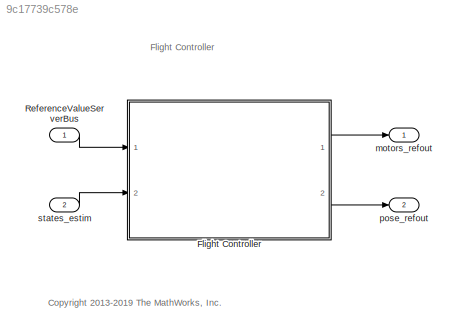
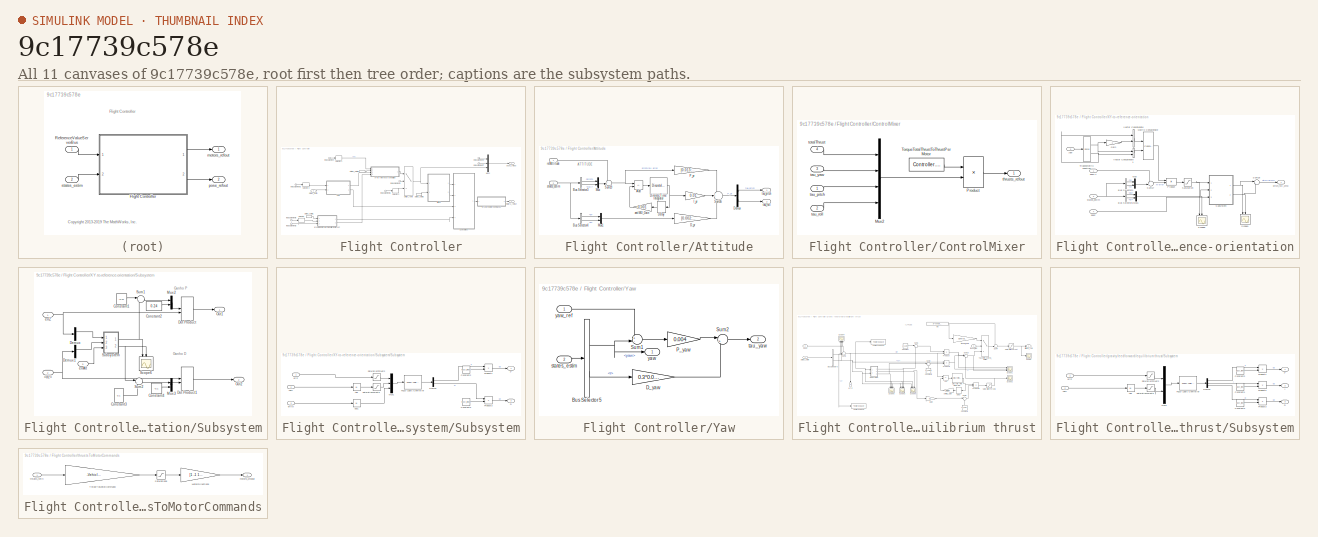
[diagram: thumbnail index - all 11 canvases of the model, root first then tree order]
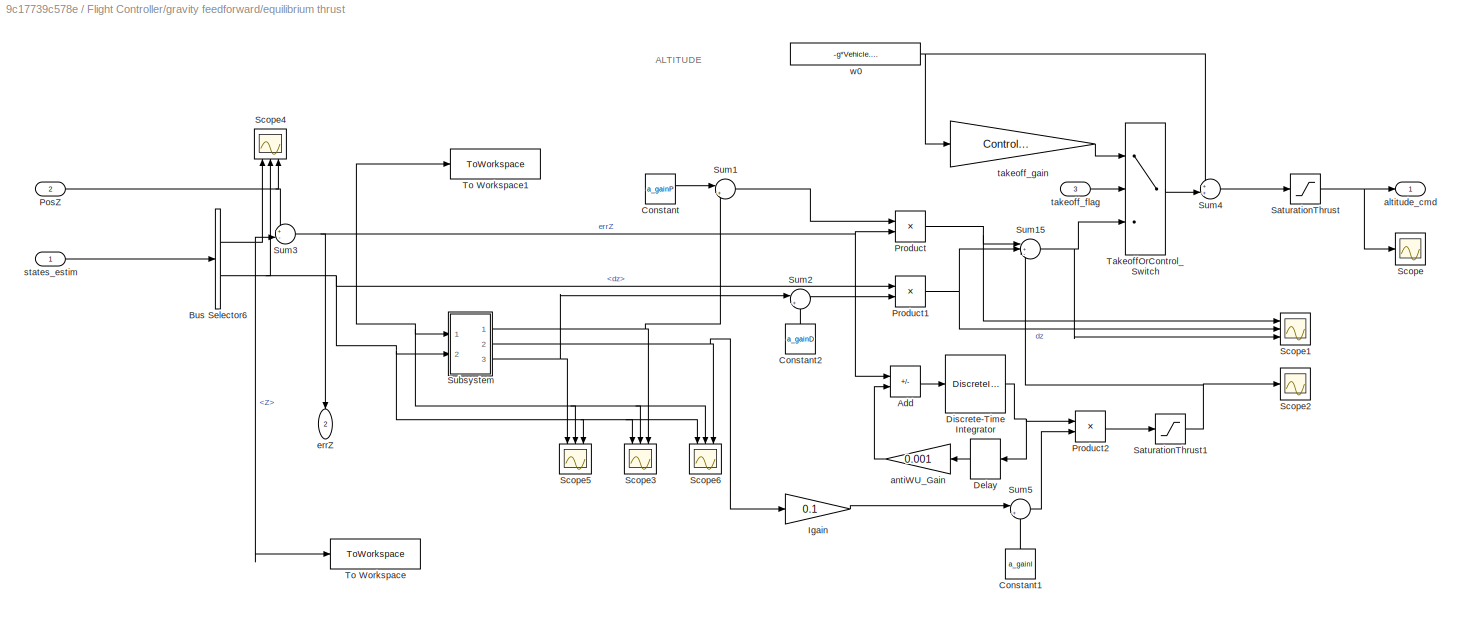
MODEL slx_9c17739c578e
KIND model
CONFIG AbsTol = auto
CONFIG EnableMultiTasking = on
CONFIG FixedStep = Ts
CONFIG MaxStep = auto
CONFIG MinStep = auto
CONFIG RelTol = 1e-3
CONFIG SampleTimeConstraint = Unconstrained
CONFIG SolverName = ode3
CONFIG StartTime = 0
CONFIG StopTime = TFinal
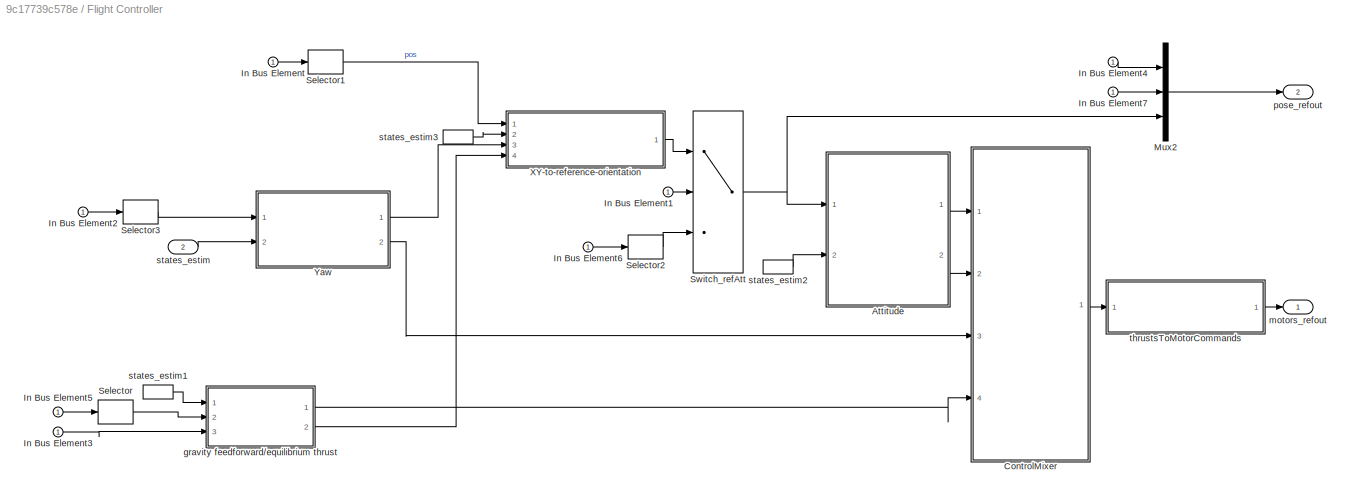
BLOCK [SubSystem] Flight Controller
  Ports = [2, 2]
  RequestExecContextInheritance = off
BLOCK [SubSystem] Flight Controller/Attitude
  Ports = [2, 2]
  RequestExecContextInheritance = off
BLOCK [Sum] Flight Controller/Attitude/Add
  IconShape = rectangular
  Inputs = +-
  Ports = [2, 1]
BLOCK [BusSelector] Flight Controller/Attitude/Bus Selector3
  OutputSignals = pitch,roll
  Ports = [1, 2]
BLOCK [BusSelector] Flight Controller/Attitude/Bus Selector4
  OutputSignals = q,p
  Ports = [1, 2]
BLOCK [Gain] Flight Controller/Attitude/D_pr
  Gain = [0.002;0.0028]
BLOCK [Delay] Flight Controller/Attitude/Delay
  DelayLength = 1
  InitialCondition = 0
  InputPortMap = u0
  Ports = [1, 1]
BLOCK [Demux] Flight Controller/Attitude/Demux
  Outputs = 2
  Ports = [1, 2]
BLOCK [DiscreteIntegrator] Flight Controller/Attitude/Discrete-Time Integrator
  ICPrevOutput = DiscIntNeverNeededParam
  ICPrevScaledInput = DiscIntNeverNeededParam
  InitialConditionSetting = Auto
  LimitOutput = on
  LowerSaturationLimit = -2
  Ports = [1, 1]
  SampleTime = Ts
  UpperSaturationLimit = 2
BLOCK [Gain] Flight Controller/Attitude/I_pr
  Gain = 0.01
BLOCK [Mux] Flight Controller/Attitude/Mux
  DisplayOption = bar
  Inputs = 2
  Ports = [2, 1]
BLOCK [Mux] Flight Controller/Attitude/Mux1
  DisplayOption = bar
  Inputs = 2
  Ports = [2, 1]
BLOCK [Gain] Flight Controller/Attitude/P_pr
  Gain = [0.013;0.01]
BLOCK [Sum] Flight Controller/Attitude/Sum16
  AccumDataTypeStr = single
  Inputs = ++-
  OutDataTypeStr = single
  Ports = [3, 1]
  SaturateOnIntegerOverflow = on
BLOCK [Sum] Flight Controller/Attitude/Sum19
  Inputs = +-|
  Ports = [2, 1]
BLOCK [Gain] Flight Controller/Attitude/antiWU_Gain
  Gain = 0.001
BLOCK [Inport] Flight Controller/Attitude/refAttitude
BLOCK [Inport] Flight Controller/Attitude/states_estim
  Port = 2
BLOCK [Outport] Flight Controller/Attitude/tau_pitch
  VectorParamsAs1DForOutWhenUnconnected = off
BLOCK [Outport] Flight Controller/Attitude/tau_roll
  Port = 2
  VectorParamsAs1DForOutWhenUnconnected = off
BLOCK [SubSystem] Flight Controller/ControlMixer
  Ports = [4, 1]
  RequestExecContextInheritance = off
BLOCK [Mux] Flight Controller/ControlMixer/Mux2
  DisplayOption = bar
  Ports = [4, 1]
BLOCK [Product] Flight Controller/ControlMixer/Product
  Multiplication = Matrix(*)
  Ports = [2, 1]
  RndMeth = Zero
BLOCK [Constant] Flight Controller/ControlMixer/TorqueTotalThrustToThrustPerMotor
  NameLocation = top
  OutDataTypeStr = single
  Value = Controller.Q2Ts
BLOCK [Inport] Flight Controller/ControlMixer/tau_pitch
BLOCK [Inport] Flight Controller/ControlMixer/tau_roll
  Port = 2
BLOCK [Inport] Flight Controller/ControlMixer/tau_yaw
  Port = 3
BLOCK [Outport] Flight Controller/ControlMixer/thrusts_refout
  VectorParamsAs1DForOutWhenUnconnected = off
BLOCK [Inport] Flight Controller/ControlMixer/totalThrust
  Port = 4
BLOCK [Inport] Flight Controller/In Bus Element
BLOCK [Inport] Flight Controller/In Bus Element1
BLOCK [Inport] Flight Controller/In Bus Element2
BLOCK [Inport] Flight Controller/In Bus Element3
BLOCK [Inport] Flight Controller/In Bus Element4
BLOCK [Inport] Flight Controller/In Bus Element5
BLOCK [Inport] Flight Controller/In Bus Element6
BLOCK [Inport] Flight Controller/In Bus Element7
BLOCK [Mux] Flight Controller/Mux2
  DisplayOption = bar
  Inputs = 3
  Ports = [3, 1]
BLOCK [Selector] Flight Controller/Selector
  IndexOptions = Index vector (dialog)
  Indices = 3
  InputPortWidth = 3
  OutputSizes = 1
  Ports = [1, 1]
BLOCK [Selector] Flight Controller/Selector1
  IndexOptions = Index vector (dialog)
  Indices = [1 2]
  InputPortWidth = 3
  OutputSizes = 1
  Ports = [1, 1]
BLOCK [Selector] Flight Controller/Selector2
  IndexOptions = Index vector (dialog)
  Indices = [2 3]
  InputPortWidth = 3
  OutputSizes = 1
  Ports = [1, 1]
BLOCK [Selector] Flight Controller/Selector3
  IndexOptions = Index vector (dialog)
  Indices = 1
  InputPortWidth = 3
  OutputSizes = 1
  Ports = [1, 1]
BLOCK [Switch] Flight Controller/Switch_refAtt
  Criteria = u2 > Threshold
  InputSameDT = off
  SaturateOnIntegerOverflow = off
BLOCK [SubSystem] Flight Controller/XY-to-reference-orientation
  Ports = [4, 1]
  RequestExecContextInheritance = off
BLOCK [BusSelector] Flight Controller/XY-to-reference-orientation/Bus Selector1
  OutputSignals = X,Y
  Ports = [1, 2]
BLOCK [BusSelector] Flight Controller/XY-to-reference-orientation/Bus Selector2
  OutputSignals = dx,dy
  Ports = [1, 2]
BLOCK [Gain] Flight Controller/XY-to-reference-orientation/Gain
  Gain = -1
BLOCK [Concatenate] Flight Controller/XY-to-reference-orientation/Matrix Concatenate
  ConcatenateDimension = 2
  Mode = Multidimensional array
  Ports = [2, 1]
BLOCK [Mux] Flight Controller/XY-to-reference-orientation/Mux
  DisplayOption = bar
  Inputs = 2
  Ports = [2, 1]
BLOCK [Mux] Flight Controller/XY-to-reference-orientation/Mux1
  DisplayOption = bar
  Inputs = 2
  Ports = [2, 1]
BLOCK [Product] Flight Controller/XY-to-reference-orientation/Product
  Multiplication = Matrix(*)
  OutDataTypeStr = single
  Ports = [2, 1]
  RndMeth = Zero
BLOCK [Saturate] Flight Controller/XY-to-reference-orientation/Saturation
  LowerLimit = -3
  OutDataTypeStr = single
  UpperLimit = 3
BLOCK [Scope] Flight Controller/XY-to-reference-orientation/Scope1
  Floating = off
  NameLocation = left
  NumInputPorts = 3
  Ports = [3]
  ScopeSpecificationString = Simulink.scopes.TimeScopeBlockCfg('CurrentConfiguration', extmgr.ConfigurationSet(extmgr.Configuration('Core','General UI',true),extmgr.Configuration('Core','Source UI',true),extmgr.Configuration('Sources','WiredSimulink',true,'DataLoggingVariableName','ScopeData2'),extmgr.Configuration('Visuals','Time Domain',true,'SerializedDisplays',{struct('MinYLimReal','-1.84828','MaxYLimReal','1.16311','YLab...<+1454ch>
BLOCK [Scope] Flight Controller/XY-to-reference-orientation/Scope6
  Floating = off
  NameLocation = left
  NumInputPorts = 3
  Ports = [3]
  ScopeSpecificationString = Simulink.scopes.TimeScopeBlockCfg('CurrentConfiguration', extmgr.ConfigurationSet(extmgr.Configuration('Core','General UI',true),extmgr.Configuration('Core','Source UI',true),extmgr.Configuration('Sources','WiredSimulink',true,'DataLoggingVariableName','ScopeData1'),extmgr.Configuration('Visuals','Time Domain',true,'SerializedDisplays',{struct('MinYLimReal','-1.84828','MaxYLimReal','1.16311','YLab...<+1454ch>
BLOCK [SubSystem] Flight Controller/XY-to-reference-orientation/Subsystem
  Ports = [3, 2]
  RequestExecContextInheritance = off
BLOCK [Inport] Flight Controller/XY-to-reference-orientation/Subsystem/<dz>
  Port = 2
BLOCK [Constant] Flight Controller/XY-to-reference-orientation/Subsystem/Constant1
  OutDataTypeStr = single
  Value = -0.24
BLOCK [Constant] Flight Controller/XY-to-reference-orientation/Subsystem/Constant2
  OutDataTypeStr = single
  Value = 0.24
BLOCK [Constant] Flight Controller/XY-to-reference-orientation/Subsystem/Constant3
  OutDataTypeStr = single
  Value = 0.1
BLOCK [Constant] Flight Controller/XY-to-reference-orientation/Subsystem/Constant4
  OutDataTypeStr = single
  Value = -0.1
BLOCK [Demux] Flight Controller/XY-to-reference-orientation/Subsystem/Demux
  Outputs = 2
  Ports = [1, 2]
BLOCK [Demux] Flight Controller/XY-to-reference-orientation/Subsystem/Demux1
  Outputs = 2
  Ports = [1, 2]
BLOCK [DotProduct] Flight Controller/XY-to-reference-orientation/Subsystem/Dot Product
  InputSameDT = off
  OutDataTypeStr = single
BLOCK [DotProduct] Flight Controller/XY-to-reference-orientation/Subsystem/Dot Product1
  InputSameDT = off
  OutDataTypeStr = single
BLOCK [Mux] Flight Controller/XY-to-reference-orientation/Subsystem/Mux2
  DisplayOption = bar
  Inputs = 2
  Ports = [2, 1]
BLOCK [Mux] Flight Controller/XY-to-reference-orientation/Subsystem/Mux3
  DisplayOption = bar
  Inputs = 2
  Ports = [2, 1]
BLOCK [Outport] Flight Controller/XY-to-reference-orientation/Subsystem/Out1
BLOCK [Outport] Flight Controller/XY-to-reference-orientation/Subsystem/Out2
  Port = 2
BLOCK [Scope] Flight Controller/XY-to-reference-orientation/Subsystem/Scope6
  Floating = off
  NameLocation = left
  NumInputPorts = 3
  Ports = [3]
  ScopeSpecificationString = Simulink.scopes.TimeScopeBlockCfg('CurrentConfiguration', extmgr.ConfigurationSet(extmgr.Configuration('Core','General UI',true),extmgr.Configuration('Core','Source UI',true),extmgr.Configuration('Sources','WiredSimulink',true,'DataLoggingVariableName','ScopeData3'),extmgr.Configuration('Visuals','Time Domain',true,'SerializedDisplays',{struct('MinYLimReal','-0.22007','MaxYLimReal','0.36817','YLab...<+1477ch>
BLOCK [SubSystem] Flight Controller/XY-to-reference-orientation/Subsystem/Subsystem
  Ports = [3, 2]
  RequestExecContextInheritance = off
BLOCK [Inport] Flight Controller/XY-to-reference-orientation/Subsystem/Subsystem/<dz>
  Port = 2
BLOCK [Abs] Flight Controller/XY-to-reference-orientation/Subsystem/Subsystem/Abs
  SaturateOnIntegerOverflow = off
BLOCK [Abs] Flight Controller/XY-to-reference-orientation/Subsystem/Subsystem/Abs1
  SaturateOnIntegerOverflow = off
BLOCK [Constant] Flight Controller/XY-to-reference-orientation/Subsystem/Subsystem/Constant2
  Value = fuzzy_feed2
BLOCK [Constant] Flight Controller/XY-to-reference-orientation/Subsystem/Subsystem/Constant3
  Value = fuzzy_feed2
BLOCK [Outport] Flight Controller/XY-to-reference-orientation/Subsystem/Subsystem/D
  Port = 2
BLOCK [Demux] Flight Controller/XY-to-reference-orientation/Subsystem/Subsystem/Demux
  Outputs = 2
  Ports = [1, 2]
BLOCK [Reference] Flight Controller/XY-to-reference-orientation/Subsystem/Subsystem/Fuzzy Logic Controller  REF=fuzblock/Fuzzy Logic   (lib defined in mdl_858b3b3e7478)
Controller
  Ports = [1, 1]
  SourceBlock = fuzblock/Fuzzy Logic \nController
  SourceProductBaseCode = FL
  SourceType = Fuzzy Inference System
BLOCK [Mux] Flight Controller/XY-to-reference-orientation/Subsystem/Subsystem/Mux1
  DisplayOption = bar
  Inputs = 3
  Ports = [3, 1]
BLOCK [Outport] Flight Controller/XY-to-reference-orientation/Subsystem/Subsystem/P
BLOCK [Product] Flight Controller/XY-to-reference-orientation/Subsystem/Subsystem/Product1
  Ports = [2, 1]
BLOCK [Product] Flight Controller/XY-to-reference-orientation/Subsystem/Subsystem/Product3
  Ports = [2, 1]
BLOCK [Saturate] Flight Controller/XY-to-reference-orientation/Subsystem/Subsystem/SaturationThrust2
  LowerLimit = -2
  OutDataTypeStr = single
  UpperLimit = 2
BLOCK [Saturate] Flight Controller/XY-to-reference-orientation/Subsystem/Subsystem/SaturationThrust3
  LowerLimit = -2
  OutDataTypeStr = single
  UpperLimit = 2
BLOCK [Inport] Flight Controller/XY-to-reference-orientation/Subsystem/Subsystem/errAlt
  Port = 3
BLOCK [Inport] Flight Controller/XY-to-reference-orientation/Subsystem/Subsystem/errZ
BLOCK [Sum] Flight Controller/XY-to-reference-orientation/Subsystem/Sum1
  AccumDataTypeStr = single
  Inputs = |+-
  OutDataTypeStr = single
  Ports = [2, 1]
  SaturateOnIntegerOverflow = on
BLOCK [Sum] Flight Controller/XY-to-reference-orientation/Subsystem/Sum2
  AccumDataTypeStr = single
  Inputs = |++
  OutDataTypeStr = single
  Ports = [2, 1]
  SaturateOnIntegerOverflow = on
BLOCK [Inport] Flight Controller/XY-to-reference-orientation/Subsystem/errAlt
  Port = 3
BLOCK [Inport] Flight Controller/XY-to-reference-orientation/Subsystem/errZ
BLOCK [Sum] Flight Controller/XY-to-reference-orientation/Sum17
  AccumDataTypeStr = single
  Inputs = +-|
  Ports = [2, 1]
BLOCK [Sum] Flight Controller/XY-to-reference-orientation/Sum18
  AccumDataTypeStr = single
  Inputs = |++
  OutDataTypeStr = single
  Ports = [2, 1]
  SaturateOnIntegerOverflow = on
BLOCK [Trigonometry] Flight Controller/XY-to-reference-orientation/Trigonometric Function
  Operator = sincos
  Ports = [1, 2]
BLOCK [Concatenate] Flight Controller/XY-to-reference-orientation/Vector Concatenate
  Ports = [2, 1]
BLOCK [Concatenate] Flight Controller/XY-to-reference-orientation/Vector Concatenate1
  Ports = [2, 1]
BLOCK [Outport] Flight Controller/XY-to-reference-orientation/pitch_roll_cmd
  VectorParamsAs1DForOutWhenUnconnected = off
BLOCK [Inport] Flight Controller/XY-to-reference-orientation/posXY
BLOCK [Inport] Flight Controller/XY-to-reference-orientation/posZ
  Port = 4
BLOCK [Inport] Flight Controller/XY-to-reference-orientation/states_estim
  Port = 2
BLOCK [Inport] Flight Controller/XY-to-reference-orientation/yaw
  Port = 3
BLOCK [SubSystem] Flight Controller/Yaw
  Ports = [2, 2]
  RequestExecContextInheritance = off
BLOCK [BusSelector] Flight Controller/Yaw/Bus Selector5
  OutputSignals = yaw,r
  Ports = [1, 2]
BLOCK [Gain] Flight Controller/Yaw/D_yaw
  Gain = 0.3*0.004
BLOCK [Gain] Flight Controller/Yaw/P_yaw
  Gain = 0.004
  OutDataTypeStr = single
  ParamDataTypeStr = single
BLOCK [Sum] Flight Controller/Yaw/Sum1
  AccumDataTypeStr = single
  Inputs = +-|
  OutDataTypeStr = single
  Ports = [2, 1]
  SaturateOnIntegerOverflow = on
BLOCK [Sum] Flight Controller/Yaw/Sum2
  Inputs = |+-
  Ports = [2, 1]
BLOCK [Inport] Flight Controller/Yaw/states_estim
  Port = 2
BLOCK [Outport] Flight Controller/Yaw/tau_yaw
  Port = 2
  VectorParamsAs1DForOutWhenUnconnected = off
BLOCK [Outport] Flight Controller/Yaw/yaw
  VectorParamsAs1DForOutWhenUnconnected = off
BLOCK [Inport] Flight Controller/Yaw/yaw_ref
BLOCK [SubSystem] Flight Controller/gravity feedforward//equilibrium thrust
  Ports = [3, 2]
  RequestExecContextInheritance = off
BLOCK [Sum] Flight Controller/gravity feedforward//equilibrium thrust/Add
  IconShape = rectangular
  Inputs = +-
  Ports = [2, 1]
BLOCK [BusSelector] Flight Controller/gravity feedforward//equilibrium thrust/Bus Selector6
  OutputSignals = Z,dz
  Ports = [1, 2]
BLOCK [Constant] Flight Controller/gravity feedforward//equilibrium thrust/Constant
  Value = a_gainP
BLOCK [Constant] Flight Controller/gravity feedforward//equilibrium thrust/Constant1
  NameLocation = right
  Value = a_gainI
BLOCK [Constant] Flight Controller/gravity feedforward//equilibrium thrust/Constant2
  NameLocation = right
  Value = a_gainD
BLOCK [Delay] Flight Controller/gravity feedforward//equilibrium thrust/Delay
  DelayLength = 1
  InitialCondition = 0
  InputPortMap = u0
  Ports = [1, 1]
BLOCK [DiscreteIntegrator] Flight Controller/gravity feedforward//equilibrium thrust/Discrete-Time Integrator
  ICPrevOutput = DiscIntNeverNeededParam
  ICPrevScaledInput = DiscIntNeverNeededParam
  InitialConditionSetting = Auto
  LimitOutput = on
  LowerSaturationLimit = -1
  Ports = [1, 1]
  SampleTime = Ts
  UpperSaturationLimit = 1
BLOCK [Gain] Flight Controller/gravity feedforward//equilibrium thrust/Igain
  Gain = 0.1
  NameLocation = top
BLOCK [Inport] Flight Controller/gravity feedforward//equilibrium thrust/PosZ
  Port = 2
BLOCK [Product] Flight Controller/gravity feedforward//equilibrium thrust/Product
  Ports = [2, 1]
BLOCK [Product] Flight Controller/gravity feedforward//equilibrium thrust/Product1
  Ports = [2, 1]
BLOCK [Product] Flight Controller/gravity feedforward//equilibrium thrust/Product2
  Ports = [2, 1]
BLOCK [Saturate] Flight Controller/gravity feedforward//equilibrium thrust/SaturationThrust
  LowerLimit = -4*Controller.totalThrustMaxRelative*Controller.motorsThrustPerMotorMax
  OutDataTypeStr = single
  UpperLimit = 4*Controller.totalThrustMaxRelative*Controller.motorsThrustPerMotorMax
BLOCK [Saturate] Flight Controller/gravity feedforward//equilibrium thrust/SaturationThrust1
  LowerLimit = -0.2
  OutDataTypeStr = single
  UpperLimit = 0.2
BLOCK [Scope] Flight Controller/gravity feedforward//equilibrium thrust/Scope
  Floating = off
  NumInputPorts = 1
  Ports = [1]
  ScopeSpecificationString = Simulink.scopes.TimeScopeBlockCfg('CurrentConfiguration', extmgr.ConfigurationSet(extmgr.Configuration('Core','General UI',true),extmgr.Configuration('Core','Source UI',true),extmgr.Configuration('Sources','WiredSimulink',true),extmgr.Configuration('Visuals','Time Domain',true,'SerializedDisplays',{struct('MinYLimReal','-1.41005','MaxYLimReal','0.69515','YLabelReal','','MinYLimMag','0.00000','MaxY...<+1361ch>
BLOCK [Scope] Flight Controller/gravity feedforward//equilibrium thrust/Scope1
  Floating = off
  NumInputPorts = 3
  Ports = [3]
  ScopeSpecificationString = Simulink.scopes.TimeScopeBlockCfg('CurrentConfiguration', extmgr.ConfigurationSet(extmgr.Configuration('Core','General UI',true),extmgr.Configuration('Core','Source UI',true),extmgr.Configuration('Sources','WiredSimulink',true,'DataLoggingVariableName','ScopeData1'),extmgr.Configuration('Visuals','Time Domain',true,'SerializedDisplays',{struct('MinYLimReal','-0.81759','MaxYLimReal','0.63358','YLab...<+1449ch>
BLOCK [Scope] Flight Controller/gravity feedforward//equilibrium thrust/Scope2
  Floating = off
  NumInputPorts = 1
  Ports = [1]
  ScopeSpecificationString = Simulink.scopes.TimeScopeBlockCfg('CurrentConfiguration', extmgr.ConfigurationSet(extmgr.Configuration('Core','General UI',true),extmgr.Configuration('Core','Source UI',true),extmgr.Configuration('Sources','WiredSimulink',true,'DataLoggingVariableName','ScopeData2'),extmgr.Configuration('Visuals','Time Domain',true,'SerializedDisplays',{struct('MinYLimReal','-0.10046','MaxYLimReal','0.0124','YLabe...<+1429ch>
BLOCK [Scope] Flight Controller/gravity feedforward//equilibrium thrust/Scope3
  Floating = off
  NameLocation = left
  NumInputPorts = 3
  Ports = [3]
  ScopeSpecificationString = Simulink.scopes.TimeScopeBlockCfg('CurrentConfiguration', extmgr.ConfigurationSet(extmgr.Configuration('Core','General UI',true),extmgr.Configuration('Core','Source UI',true),extmgr.Configuration('Sources','WiredSimulink',true,'DataLoggingVariableName','ScopeData1'),extmgr.Configuration('Visuals','Time Domain',true,'SerializedDisplays',{struct('MinYLimReal','-1.15287','MaxYLimReal','1.18348','YLab...<+1479ch>
BLOCK [Scope] Flight Controller/gravity feedforward//equilibrium thrust/Scope4
  Floating = off
  NameLocation = right
  NumInputPorts = 3
  Ports = [3]
  ScopeSpecificationString = Simulink.scopes.TimeScopeBlockCfg('CurrentConfiguration', extmgr.ConfigurationSet(extmgr.Configuration('Core','General UI',true),extmgr.Configuration('Core','Source UI',true),extmgr.Configuration('Sources','WiredSimulink',true,'DataLoggingVariableName','ScopeData4'),extmgr.Configuration('Visuals','Time Domain',true,'SerializedDisplays',{struct('MinYLimReal','-4.41057','MaxYLimReal','0.44216','YLab...<+2776ch>
BLOCK [Scope] Flight Controller/gravity feedforward//equilibrium thrust/Scope5
  Floating = off
  NameLocation = left
  NumInputPorts = 3
  Ports = [3]
  ScopeSpecificationString = Simulink.scopes.TimeScopeBlockCfg('CurrentConfiguration', extmgr.ConfigurationSet(extmgr.Configuration('Core','General UI',true),extmgr.Configuration('Core','Source UI',true),extmgr.Configuration('Sources','WiredSimulink',true,'DataLoggingVariableName','ScopeData1'),extmgr.Configuration('Visuals','Time Domain',true,'SerializedDisplays',{struct('MinYLimReal','-4.23107','MaxYLimReal','1.63791','YLab...<+1454ch>
BLOCK [Scope] Flight Controller/gravity feedforward//equilibrium thrust/Scope6
  Floating = off
  NameLocation = left
  NumInputPorts = 3
  Ports = [3]
  ScopeSpecificationString = Simulink.scopes.TimeScopeBlockCfg('CurrentConfiguration', extmgr.ConfigurationSet(extmgr.Configuration('Core','General UI',true),extmgr.Configuration('Core','Source UI',true),extmgr.Configuration('Sources','WiredSimulink',true,'DataLoggingVariableName','ScopeData1'),extmgr.Configuration('Visuals','Time Domain',true,'SerializedDisplays',{struct('MinYLimReal','-1.84828','MaxYLimReal','1.16311','YLab...<+1454ch>
BLOCK [SubSystem] Flight Controller/gravity feedforward//equilibrium thrust/Subsystem
  Ports = [2, 3]
  RequestExecContextInheritance = off
BLOCK [Inport] Flight Controller/gravity feedforward//equilibrium thrust/Subsystem/<dz>
  Port = 2
BLOCK [Abs] Flight Controller/gravity feedforward//equilibrium thrust/Subsystem/Abs
  SaturateOnIntegerOverflow = off
BLOCK [Constant] Flight Controller/gravity feedforward//equilibrium thrust/Subsystem/Constant1
  Value = fuzzy_feed
BLOCK [Constant] Flight Controller/gravity feedforward//equilibrium thrust/Subsystem/Constant2
  Value = fuzzy_feed
BLOCK [Constant] Flight Controller/gravity feedforward//equilibrium thrust/Subsystem/Constant3
  Value = fuzzy_feed
BLOCK [Outport] Flight Controller/gravity feedforward//equilibrium thrust/Subsystem/D
  Port = 3
BLOCK [Demux] Flight Controller/gravity feedforward//equilibrium thrust/Subsystem/Demux
  Outputs = 3
  Ports = [1, 3]
BLOCK [Reference] Flight Controller/gravity feedforward//equilibrium thrust/Subsystem/Fuzzy Logic Controller  REF=fuzblock/Fuzzy Logic   (lib defined in mdl_858b3b3e7478)
Controller
  Ports = [1, 1]
  SourceBlock = fuzblock/Fuzzy Logic \nController
  SourceProductBaseCode = FL
  SourceType = Fuzzy Inference System
BLOCK [Outport] Flight Controller/gravity feedforward//equilibrium thrust/Subsystem/I
  Port = 2
BLOCK [Mux] Flight Controller/gravity feedforward//equilibrium thrust/Subsystem/Mux1
  DisplayOption = bar
  Inputs = 2
  Ports = [2, 1]
BLOCK [Outport] Flight Controller/gravity feedforward//equilibrium thrust/Subsystem/P
BLOCK [Product] Flight Controller/gravity feedforward//equilibrium thrust/Subsystem/Product1
  Ports = [2, 1]
BLOCK [Product] Flight Controller/gravity feedforward//equilibrium thrust/Subsystem/Product2
  Ports = [2, 1]
BLOCK [Product] Flight Controller/gravity feedforward//equilibrium thrust/Subsystem/Product3
  Ports = [2, 1]
BLOCK [Saturate] Flight Controller/gravity feedforward//equilibrium thrust/Subsystem/SaturationThrust2
  LowerLimit = -2
  OutDataTypeStr = single
  UpperLimit = 2
BLOCK [Saturate] Flight Controller/gravity feedforward//equilibrium thrust/Subsystem/SaturationThrust3
  LowerLimit = -2
  OutDataTypeStr = single
  UpperLimit = 2
BLOCK [Inport] Flight Controller/gravity feedforward//equilibrium thrust/Subsystem/errZ
BLOCK [Sum] Flight Controller/gravity feedforward//equilibrium thrust/Sum1
  AccumDataTypeStr = single
  Inputs = |++
  OutDataTypeStr = single
  Ports = [2, 1]
  SaturateOnIntegerOverflow = on
BLOCK [Sum] Flight Controller/gravity feedforward//equilibrium thrust/Sum15
  AccumDataTypeStr = single
  Inputs = |+-+
  OutDataTypeStr = single
  Ports = [3, 1]
  SaturateOnIntegerOverflow = on
BLOCK [Sum] Flight Controller/gravity feedforward//equilibrium thrust/Sum2
  AccumDataTypeStr = single
  Inputs = |++
  OutDataTypeStr = single
  Ports = [2, 1]
  SaturateOnIntegerOverflow = on
BLOCK [Sum] Flight Controller/gravity feedforward//equilibrium thrust/Sum3
  AccumDataTypeStr = single
  Inputs = +-|
  OutDataTypeStr = single
  Ports = [2, 1]
  SaturateOnIntegerOverflow = on
BLOCK [Sum] Flight Controller/gravity feedforward//equilibrium thrust/Sum4
  AccumDataTypeStr = single
  Inputs = ++|
  OutDataTypeStr = single
  Ports = [2, 1]
  SaturateOnIntegerOverflow = on
BLOCK [Sum] Flight Controller/gravity feedforward//equilibrium thrust/Sum5
  AccumDataTypeStr = single
  Inputs = |++
  OutDataTypeStr = single
  Ports = [2, 1]
  SaturateOnIntegerOverflow = on
BLOCK [Switch] Flight Controller/gravity feedforward//equilibrium thrust/TakeoffOrControl_Switch
  Criteria = u2 > Threshold
  InputSameDT = off
  SaturateOnIntegerOverflow = off
BLOCK [ToWorkspace] Flight Controller/gravity feedforward//equilibrium thrust/To Workspace
  FixptAsFi = on
  MaxDataPoints = inf
  Ports = [1]
  SampleTime = -1
  VariableName = refAltDrone
BLOCK [ToWorkspace] Flight Controller/gravity feedforward//equilibrium thrust/To Workspace1
  FixptAsFi = on
  MaxDataPoints = inf
  Ports = [1]
  SampleTime = -1
  VariableName = AltError
BLOCK [Outport] Flight Controller/gravity feedforward//equilibrium thrust/altitude_cmd
  VectorParamsAs1DForOutWhenUnconnected = off
BLOCK [Gain] Flight Controller/gravity feedforward//equilibrium thrust/antiWU_Gain
  Gain = 0.001
BLOCK [Outport] Flight Controller/gravity feedforward//equilibrium thrust/errZ
  NameLocation = left
  Port = 2
  VectorParamsAs1DForOutWhenUnconnected = off
BLOCK [Inport] Flight Controller/gravity feedforward//equilibrium thrust/states_estim
BLOCK [Inport] Flight Controller/gravity feedforward//equilibrium thrust/takeoff_flag
  Port = 3
BLOCK [Gain] Flight Controller/gravity feedforward//equilibrium thrust/takeoff_gain
  Gain = Controller.takeoffGain
  OutDataTypeStr = single
  ParamDataTypeStr = single
  SaturateOnIntegerOverflow = on
BLOCK [Constant] Flight Controller/gravity feedforward//equilibrium thrust/w0
  OutDataTypeStr = single
  SampleTime = Ts
  Value = -g*Vehicle.Airframe.mass
BLOCK [Outport] Flight Controller/motors_refout
  VectorParamsAs1DForOutWhenUnconnected = off
BLOCK [Outport] Flight Controller/pose_refout
  Port = 2
  VectorParamsAs1DForOutWhenUnconnected = off
BLOCK [Inport] Flight Controller/states_estim
  Port = 2
BLOCK [InportShadow] Flight Controller/states_estim1
  Port = 2
BLOCK [InportShadow] Flight Controller/states_estim2
  Port = 2
BLOCK [InportShadow] Flight Controller/states_estim3
  Port = 2
BLOCK [SubSystem] Flight Controller/thrustsToMotorCommands
  Ports = [1, 1]
  RequestExecContextInheritance = off
BLOCK [Gain] Flight Controller/thrustsToMotorCommands/MotorDirections
  Gain = [1 -1 1 -1]
BLOCK [Saturate] Flight Controller/thrustsToMotorCommands/Saturation5
  LowerLimit = Vehicle.Motor.minLimit
  UpperLimit = Vehicle.Motor.maxLimit
BLOCK [Gain] Flight Controller/thrustsToMotorCommands/ThrustToMotorCommand
  Gain = -Vehicle.Motor.thrustToMotorCommand
BLOCK [Outport] Flight Controller/thrustsToMotorCommands/motors_cmdout
  VectorParamsAs1DForOutWhenUnconnected = off
BLOCK [Inport] Flight Controller/thrustsToMotorCommands/thrusts_refin
BLOCK [Inport] ReferenceValueServerBus
  BusOutputAsStruct = on
  OutDataTypeStr = Bus: CommandBus
BLOCK [Outport] motors_refout
  VectorParamsAs1DForOutWhenUnconnected = off
BLOCK [Outport] pose_refout
  Port = 2
  VectorParamsAs1DForOutWhenUnconnected = off
BLOCK [Inport] states_estim
  BusOutputAsStruct = on
  OutDataTypeStr = Bus: statesEstim_t
  Port = 2
ANNOTATION (root): <copyright redacted>
ANNOTATION (root): Flight Controller
ANNOTATION Flight Controller/Attitude: ATTITUDE
ANNOTATION Flight Controller/XY-to-reference-orientation/Subsystem: Ganho D
ANNOTATION Flight Controller/XY-to-reference-orientation/Subsystem: Ganho P
ANNOTATION Flight Controller/gravity feedforward//equilibrium thrust: ALTITUDE
LINE Flight Controller/Attitude/Add:1 -> Flight Controller/Attitude/Discrete-Time Integrator:1
LINE Flight Controller/Attitude/Bus Selector3:1 -> Flight Controller/Attitude/Mux:1
LINE Flight Controller/Attitude/Bus Selector3:2 -> Flight Controller/Attitude/Mux:2
LINE Flight Controller/Attitude/Bus Selector4:1 -> Flight Controller/Attitude/Mux1:1
LINE Flight Controller/Attitude/Bus Selector4:2 -> Flight Controller/Attitude/Mux1:2
LINE Flight Controller/Attitude/D_pr:1 -> Flight Controller/Attitude/Sum16:3
LINE Flight Controller/Attitude/Delay:1 -> Flight Controller/Attitude/antiWU_Gain:1
LINE Flight Controller/Attitude/Demux:1 -> Flight Controller/Attitude/tau_pitch:1
LINE Flight Controller/Attitude/Demux:2 -> Flight Controller/Attitude/tau_roll:1
NET Flight Controller/Attitude/Discrete-Time Integrator:1 -> Flight Controller/Attitude/Delay:1, Flight Controller/Attitude/I_pr:1
LINE Flight Controller/Attitude/I_pr:1 -> Flight Controller/Attitude/Sum16:2
LINE Flight Controller/Attitude/Mux1:1 -> Flight Controller/Attitude/D_pr:1
LINE Flight Controller/Attitude/Mux:1 -> Flight Controller/Attitude/Sum19:2
LINE Flight Controller/Attitude/P_pr:1 -> Flight Controller/Attitude/Sum16:1
LINE Flight Controller/Attitude/Sum16:1 -> Flight Controller/Attitude/Demux:1
NET Flight Controller/Attitude/Sum19:1 -> Flight Controller/Attitude/Add:1, Flight Controller/Attitude/P_pr:1
LINE Flight Controller/Attitude/antiWU_Gain:1 -> Flight Controller/Attitude/Add:2
LINE Flight Controller/Attitude/refAttitude:1 -> Flight Controller/Attitude/Sum19:1
NET Flight Controller/Attitude/states_estim:1 -> Flight Controller/Attitude/Bus Selector3:1, Flight Controller/Attitude/Bus Selector4:1
LINE Flight Controller/Attitude:1 -> Flight Controller/ControlMixer:1
LINE Flight Controller/Attitude:2 -> Flight Controller/ControlMixer:2
LINE Flight Controller/ControlMixer/Mux2:1 -> Flight Controller/ControlMixer/Product:2
LINE Flight Controller/ControlMixer/Product:1 -> Flight Controller/ControlMixer/thrusts_refout:1
LINE Flight Controller/ControlMixer/TorqueTotalThrustToThrustPerMotor:1 -> Flight Controller/ControlMixer/Product:1
LINE Flight Controller/ControlMixer/tau_pitch:1 -> Flight Controller/ControlMixer/Mux2:3
LINE Flight Controller/ControlMixer/tau_roll:1 -> Flight Controller/ControlMixer/Mux2:4
LINE Flight Controller/ControlMixer/tau_yaw:1 -> Flight Controller/ControlMixer/Mux2:2
LINE Flight Controller/ControlMixer/totalThrust:1 -> Flight Controller/ControlMixer/Mux2:1
LINE Flight Controller/ControlMixer:1 -> Flight Controller/thrustsToMotorCommands:1
LINE Flight Controller/In Bus Element1:1 -> Flight Controller/Switch_refAtt:2
LINE Flight Controller/In Bus Element2:1 -> Flight Controller/Selector3:1
LINE Flight Controller/In Bus Element3:1 -> Flight Controller/gravity feedforward//equilibrium thrust:3
LINE Flight Controller/In Bus Element4:1 -> Flight Controller/Mux2:1
LINE Flight Controller/In Bus Element5:1 -> Flight Controller/Selector:1
LINE Flight Controller/In Bus Element6:1 -> Flight Controller/Selector2:1
LINE Flight Controller/In Bus Element7:1 -> Flight Controller/Mux2:2
LINE Flight Controller/In Bus Element:1 -> Flight Controller/Selector1:1
LINE Flight Controller/Mux2:1 -> Flight Controller/pose_refout:1
LINE Flight Controller/Selector1:1 -> Flight Controller/XY-to-reference-orientation:1
LINE Flight Controller/Selector2:1 -> Flight Controller/Switch_refAtt:3
LINE Flight Controller/Selector3:1 -> Flight Controller/Yaw:1
LINE Flight Controller/Selector:1 -> Flight Controller/gravity feedforward//equilibrium thrust:2
NET Flight Controller/Switch_refAtt:1 -> Flight Controller/Attitude:1, Flight Controller/Mux2:3
LINE Flight Controller/XY-to-reference-orientation/Bus Selector1:1 -> Flight Controller/XY-to-reference-orientation/Mux:1
LINE Flight Controller/XY-to-reference-orientation/Bus Selector1:2 -> Flight Controller/XY-to-reference-orientation/Mux:2
LINE Flight Controller/XY-to-reference-orientation/Bus Selector2:1 -> Flight Controller/XY-to-reference-orientation/Mux1:1
LINE Flight Controller/XY-to-reference-orientation/Bus Selector2:2 -> Flight Controller/XY-to-reference-orientation/Mux1:2
LINE Flight Controller/XY-to-reference-orientation/Gain:1 -> Flight Controller/XY-to-reference-orientation/Vector Concatenate:2
LINE Flight Controller/XY-to-reference-orientation/Matrix Concatenate:1 -> Flight Controller/XY-to-reference-orientation/Product:1
NET Flight Controller/XY-to-reference-orientation/Mux1:1 -> Flight Controller/XY-to-reference-orientation/Scope6:2, Flight Controller/XY-to-reference-orientation/Subsystem:2
LINE Flight Controller/XY-to-reference-orientation/Mux:1 -> Flight Controller/XY-to-reference-orientation/Sum17:2
LINE Flight Controller/XY-to-reference-orientation/Product:1 -> Flight Controller/XY-to-reference-orientation/Saturation:1
NET Flight Controller/XY-to-reference-orientation/Saturation:1 -> Flight Controller/XY-to-reference-orientation/Scope6:1, Flight Controller/XY-to-reference-orientation/Subsystem:1
NET Flight Controller/XY-to-reference-orientation/Subsystem/<dz>:1 -> Flight Controller/XY-to-reference-orientation/Subsystem/Demux1:1, Flight Controller/XY-to-reference-orientation/Subsystem/Dot Product1:1
LINE Flight Controller/XY-to-reference-orientation/Subsystem/Constant1:1 -> Flight Controller/XY-to-reference-orientation/Subsystem/Sum1:1
LINE Flight Controller/XY-to-reference-orientation/Subsystem/Constant2:1 -> Flight Controller/XY-to-reference-orientation/Subsystem/Mux2:2
LINE Flight Controller/XY-to-reference-orientation/Subsystem/Constant3:1 -> Flight Controller/XY-to-reference-orientation/Subsystem/Sum2:2
LINE Flight Controller/XY-to-reference-orientation/Subsystem/Constant4:1 -> Flight Controller/XY-to-reference-orientation/Subsystem/Mux3:2
LINE Flight Controller/XY-to-reference-orientation/Subsystem/Demux1:1 -> Flight Controller/XY-to-reference-orientation/Subsystem/Subsystem:2
LINE Flight Controller/XY-to-reference-orientation/Subsystem/Demux:1 -> Flight Controller/XY-to-reference-orientation/Subsystem/Subsystem:1
LINE Flight Controller/XY-to-reference-orientation/Subsystem/Dot Product1:1 -> Flight Controller/XY-to-reference-orientation/Subsystem/Out2:1
LINE Flight Controller/XY-to-reference-orientation/Subsystem/Dot Product:1 -> Flight Controller/XY-to-reference-orientation/Subsystem/Out1:1
LINE Flight Controller/XY-to-reference-orientation/Subsystem/Mux2:1 -> Flight Controller/XY-to-reference-orientation/Subsystem/Dot Product:1
LINE Flight Controller/XY-to-reference-orientation/Subsystem/Mux3:1 -> Flight Controller/XY-to-reference-orientation/Subsystem/Dot Product1:2
LINE Flight Controller/XY-to-reference-orientation/Subsystem/Subsystem/<dz>:1 -> Flight Controller/XY-to-reference-orientation/Subsystem/Subsystem/Abs:1
LINE Flight Controller/XY-to-reference-orientation/Subsystem/Subsystem/Abs1:1 -> Flight Controller/XY-to-reference-orientation/Subsystem/Subsystem/Mux1:3
LINE Flight Controller/XY-to-reference-orientation/Subsystem/Subsystem/Abs:1 -> Flight Controller/XY-to-reference-orientation/Subsystem/Subsystem/SaturationThrust3:1
LINE Flight Controller/XY-to-reference-orientation/Subsystem/Subsystem/Constant2:1 -> Flight Controller/XY-to-reference-orientation/Subsystem/Subsystem/Product1:2
LINE Flight Controller/XY-to-reference-orientation/Subsystem/Subsystem/Constant3:1 -> Flight Controller/XY-to-reference-orientation/Subsystem/Subsystem/Product3:2
LINE Flight Controller/XY-to-reference-orientation/Subsystem/Subsystem/Demux:1 -> Flight Controller/XY-to-reference-orientation/Subsystem/Subsystem/Product1:1
LINE Flight Controller/XY-to-reference-orientation/Subsystem/Subsystem/Demux:2 -> Flight Controller/XY-to-reference-orientation/Subsystem/Subsystem/Product3:1
LINE Flight Controller/XY-to-reference-orientation/Subsystem/Subsystem/Fuzzy Logic Controller:1 -> Flight Controller/XY-to-reference-orientation/Subsystem/Subsystem/Demux:1
LINE Flight Controller/XY-to-reference-orientation/Subsystem/Subsystem/Mux1:1 -> Flight Controller/XY-to-reference-orientation/Subsystem/Subsystem/Fuzzy Logic Controller:1
LINE Flight Controller/XY-to-reference-orientation/Subsystem/Subsystem/Product1:1 -> Flight Controller/XY-to-reference-orientation/Subsystem/Subsystem/P:1
LINE Flight Controller/XY-to-reference-orientation/Subsystem/Subsystem/Product3:1 -> Flight Controller/XY-to-reference-orientation/Subsystem/Subsystem/D:1
LINE Flight Controller/XY-to-reference-orientation/Subsystem/Subsystem/SaturationThrust2:1 -> Flight Controller/XY-to-reference-orientation/Subsystem/Subsystem/Mux1:1
LINE Flight Controller/XY-to-reference-orientation/Subsystem/Subsystem/SaturationThrust3:1 -> Flight Controller/XY-to-reference-orientation/Subsystem/Subsystem/Mux1:2
LINE Flight Controller/XY-to-reference-orientation/Subsystem/Subsystem/errAlt:1 -> Flight Controller/XY-to-reference-orientation/Subsystem/Subsystem/Abs1:1
LINE Flight Controller/XY-to-reference-orientation/Subsystem/Subsystem/errZ:1 -> Flight Controller/XY-to-reference-orientation/Subsystem/Subsystem/SaturationThrust2:1
NET Flight Controller/XY-to-reference-orientation/Subsystem/Subsystem:1 -> Flight Controller/XY-to-reference-orientation/Subsystem/Scope6:1, Flight Controller/XY-to-reference-orientation/Subsystem/Sum1:2
NET Flight Controller/XY-to-reference-orientation/Subsystem/Subsystem:2 -> Flight Controller/XY-to-reference-orientation/Subsystem/Scope6:2, Flight Controller/XY-to-reference-orientation/Subsystem/Sum2:1
LINE Flight Controller/XY-to-reference-orientation/Subsystem/Sum1:1 -> Flight Controller/XY-to-reference-orientation/Subsystem/Mux2:1
LINE Flight Controller/XY-to-reference-orientation/Subsystem/Sum2:1 -> Flight Controller/XY-to-reference-orientation/Subsystem/Mux3:1
LINE Flight Controller/XY-to-reference-orientation/Subsystem/errAlt:1 -> Flight Controller/XY-to-reference-orientation/Subsystem/Subsystem:3
NET Flight Controller/XY-to-reference-orientation/Subsystem/errZ:1 -> Flight Controller/XY-to-reference-orientation/Subsystem/Demux:1, Flight Controller/XY-to-reference-orientation/Subsystem/Dot Product:2
NET Flight Controller/XY-to-reference-orientation/Subsystem:1 -> Flight Controller/XY-to-reference-orientation/Scope1:1, Flight Controller/XY-to-reference-orientation/Sum18:1
NET Flight Controller/XY-to-reference-orientation/Subsystem:2 -> Flight Controller/XY-to-reference-orientation/Scope1:2, Flight Controller/XY-to-reference-orientation/Sum18:2
LINE Flight Controller/XY-to-reference-orientation/Sum17:1 -> Flight Controller/XY-to-reference-orientation/Product:2
LINE Flight Controller/XY-to-reference-orientation/Sum18:1 -> Flight Controller/XY-to-reference-orientation/pitch_roll_cmd:1
NET Flight Controller/XY-to-reference-orientation/Trigonometric Function:1 -> Flight Controller/XY-to-reference-orientation/Gain:1, Flight Controller/XY-to-reference-orientation/Vector Concatenate1:1
NET Flight Controller/XY-to-reference-orientation/Trigonometric Function:2 -> Flight Controller/XY-to-reference-orientation/Vector Concatenate1:2, Flight Controller/XY-to-reference-orientation/Vector Concatenate:1
LINE Flight Controller/XY-to-reference-orientation/Vector Concatenate1:1 -> Flight Controller/XY-to-reference-orientation/Matrix Concatenate:2
LINE Flight Controller/XY-to-reference-orientation/Vector Concatenate:1 -> Flight Controller/XY-to-reference-orientation/Matrix Concatenate:1
LINE Flight Controller/XY-to-reference-orientation/posXY:1 -> Flight Controller/XY-to-reference-orientation/Sum17:1
LINE Flight Controller/XY-to-reference-orientation/posZ:1 -> Flight Controller/XY-to-reference-orientation/Subsystem:3
NET Flight Controller/XY-to-reference-orientation/states_estim:1 -> Flight Controller/XY-to-reference-orientation/Bus Selector1:1, Flight Controller/XY-to-reference-orientation/Bus Selector2:1
LINE Flight Controller/XY-to-reference-orientation/yaw:1 -> Flight Controller/XY-to-reference-orientation/Trigonometric Function:1
LINE Flight Controller/XY-to-reference-orientation:1 -> Flight Controller/Switch_refAtt:1
NET Flight Controller/Yaw/Bus Selector5:1 -> Flight Controller/Yaw/Sum1:2, Flight Controller/Yaw/yaw:1
LINE Flight Controller/Yaw/Bus Selector5:2 -> Flight Controller/Yaw/D_yaw:1
LINE Flight Controller/Yaw/D_yaw:1 -> Flight Controller/Yaw/Sum2:2
LINE Flight Controller/Yaw/P_yaw:1 -> Flight Controller/Yaw/Sum2:1
LINE Flight Controller/Yaw/Sum1:1 -> Flight Controller/Yaw/P_yaw:1
LINE Flight Controller/Yaw/Sum2:1 -> Flight Controller/Yaw/tau_yaw:1
LINE Flight Controller/Yaw/states_estim:1 -> Flight Controller/Yaw/Bus Selector5:1
LINE Flight Controller/Yaw/yaw_ref:1 -> Flight Controller/Yaw/Sum1:1
LINE Flight Controller/Yaw:1 -> Flight Controller/XY-to-reference-orientation:3
LINE Flight Controller/Yaw:2 -> Flight Controller/ControlMixer:3
LINE Flight Controller/gravity feedforward//equilibrium thrust/Add:1 -> Flight Controller/gravity feedforward//equilibrium thrust/Discrete-Time Integrator:1
NET Flight Controller/gravity feedforward//equilibrium thrust/Bus Selector6:1 -> Flight Controller/gravity feedforward//equilibrium thrust/Scope4:1, Flight Controller/gravity feedforward//equilibrium thrust/Sum3:2, Flight Controller/gravity feedforward//equilibrium thrust/To Workspace:1
NET Flight Controller/gravity feedforward//equilibrium thrust/Bus Selector6:2 -> Flight Controller/gravity feedforward//equilibrium thrust/Product1:1, Flight Controller/gravity feedforward//equilibrium thrust/Scope3:1, Flight Controller/gravity feedforward//equilibrium thrust/Scope4:2, Flight Controller/gravity feedforward//equilibrium thrust/Scope5:3, Flight Controller/gravity feedforward//equilibrium thrust/Scope6:1, Flight Controller/gravity feedforward//equilibrium thrust/Subsystem:2
LINE Flight Controller/gravity feedforward//equilibrium thrust/Constant1:1 -> Flight Controller/gravity feedforward//equilibrium thrust/Sum5:2
LINE Flight Controller/gravity feedforward//equilibrium thrust/Constant2:1 -> Flight Controller/gravity feedforward//equilibrium thrust/Sum2:2
LINE Flight Controller/gravity feedforward//equilibrium thrust/Constant:1 -> Flight Controller/gravity feedforward//equilibrium thrust/Sum1:1
LINE Flight Controller/gravity feedforward//equilibrium thrust/Delay:1 -> Flight Controller/gravity feedforward//equilibrium thrust/antiWU_Gain:1
NET Flight Controller/gravity feedforward//equilibrium thrust/Discrete-Time Integrator:1 -> Flight Controller/gravity feedforward//equilibrium thrust/Delay:1, Flight Controller/gravity feedforward//equilibrium thrust/Product2:1
LINE Flight Controller/gravity feedforward//equilibrium thrust/Igain:1 -> Flight Controller/gravity feedforward//equilibrium thrust/Sum5:1
NET Flight Controller/gravity feedforward//equilibrium thrust/PosZ:1 -> Flight Controller/gravity feedforward//equilibrium thrust/Scope4:3, Flight Controller/gravity feedforward//equilibrium thrust/Sum3:1
NET Flight Controller/gravity feedforward//equilibrium thrust/Product1:1 -> Flight Controller/gravity feedforward//equilibrium thrust/Scope1:2, Flight Controller/gravity feedforward//equilibrium thrust/Sum15:2
LINE Flight Controller/gravity feedforward//equilibrium thrust/Product2:1 -> Flight Controller/gravity feedforward//equilibrium thrust/SaturationThrust1:1
NET Flight Controller/gravity feedforward//equilibrium thrust/Product:1 -> Flight Controller/gravity feedforward//equilibrium thrust/Scope1:1, Flight Controller/gravity feedforward//equilibrium thrust/Sum15:1
NET Flight Controller/gravity feedforward//equilibrium thrust/SaturationThrust1:1 -> Flight Controller/gravity feedforward//equilibrium thrust/Scope2:1, Flight Controller/gravity feedforward//equilibrium thrust/Sum15:3
NET Flight Controller/gravity feedforward//equilibrium thrust/SaturationThrust:1 -> Flight Controller/gravity feedforward//equilibrium thrust/Scope:1, Flight Controller/gravity feedforward//equilibrium thrust/altitude_cmd:1
LINE Flight Controller/gravity feedforward//equilibrium thrust/Subsystem/<dz>:1 -> Flight Controller/gravity feedforward//equilibrium thrust/Subsystem/Abs:1
LINE Flight Controller/gravity feedforward//equilibrium thrust/Subsystem/Abs:1 -> Flight Controller/gravity feedforward//equilibrium thrust/Subsystem/SaturationThrust3:1
LINE Flight Controller/gravity feedforward//equilibrium thrust/Subsystem/Constant1:1 -> Flight Controller/gravity feedforward//equilibrium thrust/Subsystem/Product2:2
LINE Flight Controller/gravity feedforward//equilibrium thrust/Subsystem/Constant2:1 -> Flight Controller/gravity feedforward//equilibrium thrust/Subsystem/Product1:2
LINE Flight Controller/gravity feedforward//equilibrium thrust/Subsystem/Constant3:1 -> Flight Controller/gravity feedforward//equilibrium thrust/Subsystem/Product3:2
LINE Flight Controller/gravity feedforward//equilibrium thrust/Subsystem/Demux:1 -> Flight Controller/gravity feedforward//equilibrium thrust/Subsystem/Product1:1
LINE Flight Controller/gravity feedforward//equilibrium thrust/Subsystem/Demux:2 -> Flight Controller/gravity feedforward//equilibrium thrust/Subsystem/Product2:1
LINE Flight Controller/gravity feedforward//equilibrium thrust/Subsystem/Demux:3 -> Flight Controller/gravity feedforward//equilibrium thrust/Subsystem/Product3:1
LINE Flight Controller/gravity feedforward//equilibrium thrust/Subsystem/Fuzzy Logic Controller:1 -> Flight Controller/gravity feedforward//equilibrium thrust/Subsystem/Demux:1
LINE Flight Controller/gravity feedforward//equilibrium thrust/Subsystem/Mux1:1 -> Flight Controller/gravity feedforward//equilibrium thrust/Subsystem/Fuzzy Logic Controller:1
LINE Flight Controller/gravity feedforward//equilibrium thrust/Subsystem/Product1:1 -> Flight Controller/gravity feedforward//equilibrium thrust/Subsystem/P:1
LINE Flight Controller/gravity feedforward//equilibrium thrust/Subsystem/Product2:1 -> Flight Controller/gravity feedforward//equilibrium thrust/Subsystem/I:1
LINE Flight Controller/gravity feedforward//equilibrium thrust/Subsystem/Product3:1 -> Flight Controller/gravity feedforward//equilibrium thrust/Subsystem/D:1
LINE Flight Controller/gravity feedforward//equilibrium thrust/Subsystem/SaturationThrust2:1 -> Flight Controller/gravity feedforward//equilibrium thrust/Subsystem/Mux1:1
LINE Flight Controller/gravity feedforward//equilibrium thrust/Subsystem/SaturationThrust3:1 -> Flight Controller/gravity feedforward//equilibrium thrust/Subsystem/Mux1:2
LINE Flight Controller/gravity feedforward//equilibrium thrust/Subsystem/errZ:1 -> Flight Controller/gravity feedforward//equilibrium thrust/Subsystem/SaturationThrust2:1
NET Flight Controller/gravity feedforward//equilibrium thrust/Subsystem:1 -> Flight Controller/gravity feedforward//equilibrium thrust/Scope3:3, Flight Controller/gravity feedforward//equilibrium thrust/Sum1:2
NET Flight Controller/gravity feedforward//equilibrium thrust/Subsystem:2 -> Flight Controller/gravity feedforward//equilibrium thrust/Igain:1, Flight Controller/gravity feedforward//equilibrium thrust/Scope6:3
NET Flight Controller/gravity feedforward//equilibrium thrust/Subsystem:3 -> Flight Controller/gravity feedforward//equilibrium thrust/Scope5:1, Flight Controller/gravity feedforward//equilibrium thrust/Sum2:1
NET Flight Controller/gravity feedforward//equilibrium thrust/Sum15:1 -> Flight Controller/gravity feedforward//equilibrium thrust/Scope1:3, Flight Controller/gravity feedforward//equilibrium thrust/TakeoffOrControl_Switch:3
LINE Flight Controller/gravity feedforward//equilibrium thrust/Sum1:1 -> Flight Controller/gravity feedforward//equilibrium thrust/Product:1
LINE Flight Controller/gravity feedforward//equilibrium thrust/Sum2:1 -> Flight Controller/gravity feedforward//equilibrium thrust/Product1:2
NET Flight Controller/gravity feedforward//equilibrium thrust/Sum3:1 -> Flight Controller/gravity feedforward//equilibrium thrust/Add:1, Flight Controller/gravity feedforward//equilibrium thrust/Product:2, Flight Controller/gravity feedforward//equilibrium thrust/Scope3:2, Flight Controller/gravity feedforward//equilibrium thrust/Scope5:2, Flight Controller/gravity feedforward//equilibrium thrust/Scope6:2, Flight Controller/gravity feedforward//equilibrium thrust/Subsystem:1, Flight Controller/gravity feedforward//equilibrium thrust/To Workspace1:1, Flight Controller/gravity feedforward//equilibrium thrust/errZ:1
LINE Flight Controller/gravity feedforward//equilibrium thrust/Sum4:1 -> Flight Controller/gravity feedforward//equilibrium thrust/SaturationThrust:1
LINE Flight Controller/gravity feedforward//equilibrium thrust/Sum5:1 -> Flight Controller/gravity feedforward//equilibrium thrust/Product2:2
LINE Flight Controller/gravity feedforward//equilibrium thrust/TakeoffOrControl_Switch:1 -> Flight Controller/gravity feedforward//equilibrium thrust/Sum4:2
LINE Flight Controller/gravity feedforward//equilibrium thrust/antiWU_Gain:1 -> Flight Controller/gravity feedforward//equilibrium thrust/Add:2
LINE Flight Controller/gravity feedforward//equilibrium thrust/states_estim:1 -> Flight Controller/gravity feedforward//equilibrium thrust/Bus Selector6:1
LINE Flight Controller/gravity feedforward//equilibrium thrust/takeoff_flag:1 -> Flight Controller/gravity feedforward//equilibrium thrust/TakeoffOrControl_Switch:2
LINE Flight Controller/gravity feedforward//equilibrium thrust/takeoff_gain:1 -> Flight Controller/gravity feedforward//equilibrium thrust/TakeoffOrControl_Switch:1
NET Flight Controller/gravity feedforward//equilibrium thrust/w0:1 -> Flight Controller/gravity feedforward//equilibrium thrust/Sum4:1, Flight Controller/gravity feedforward//equilibrium thrust/takeoff_gain:1
LINE Flight Controller/gravity feedforward//equilibrium thrust:1 -> Flight Controller/ControlMixer:4
LINE Flight Controller/gravity feedforward//equilibrium thrust:2 -> Flight Controller/XY-to-reference-orientation:4
LINE Flight Controller/states_estim1:1 -> Flight Controller/gravity feedforward//equilibrium thrust:1
LINE Flight Controller/states_estim2:1 -> Flight Controller/Attitude:2
LINE Flight Controller/states_estim3:1 -> Flight Controller/XY-to-reference-orientation:2
LINE Flight Controller/states_estim:1 -> Flight Controller/Yaw:2
LINE Flight Controller/thrustsToMotorCommands/MotorDirections:1 -> Flight Controller/thrustsToMotorCommands/motors_cmdout:1
LINE Flight Controller/thrustsToMotorCommands/Saturation5:1 -> Flight Controller/thrustsToMotorCommands/MotorDirections:1
LINE Flight Controller/thrustsToMotorCommands/ThrustToMotorCommand:1 -> Flight Controller/thrustsToMotorCommands/Saturation5:1
LINE Flight Controller/thrustsToMotorCommands/thrusts_refin:1 -> Flight Controller/thrustsToMotorCommands/ThrustToMotorCommand:1
LINE Flight Controller/thrustsToMotorCommands:1 -> Flight Controller/motors_refout:1
LINE Flight Controller:1 -> motors_refout:1
LINE Flight Controller:2 -> pose_refout:1
LINE ReferenceValueServerBus:1 -> Flight Controller:1
LINE states_estim:1 -> Flight Controller:2
note: NET lines group one-source signal fan-out (src -> all destinations, sorted); 1:1 wires keep LINE
